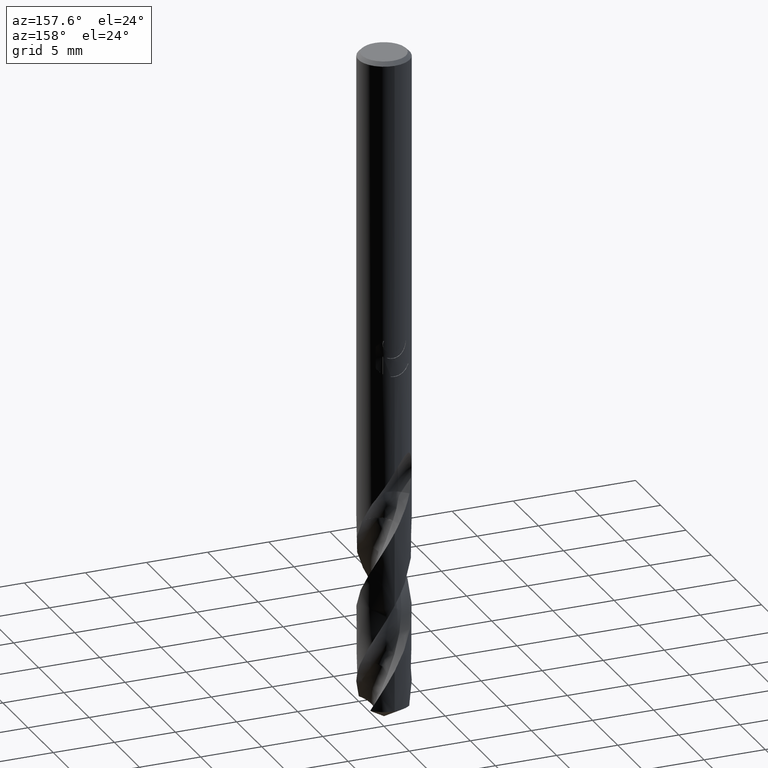
[diagram: clean part render]
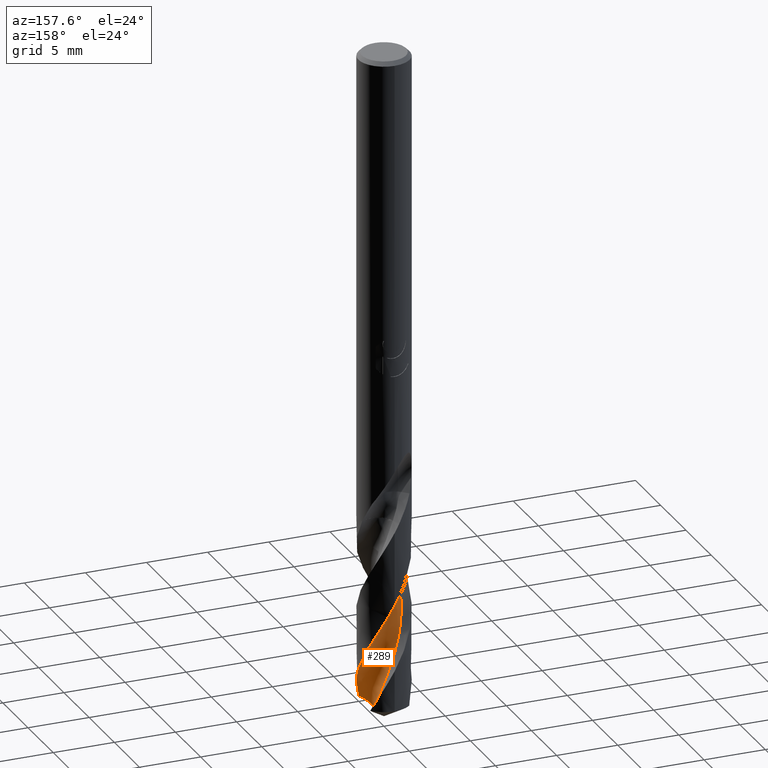
[diagram: same view with one face highlighted and labeled with its STEP entity id]
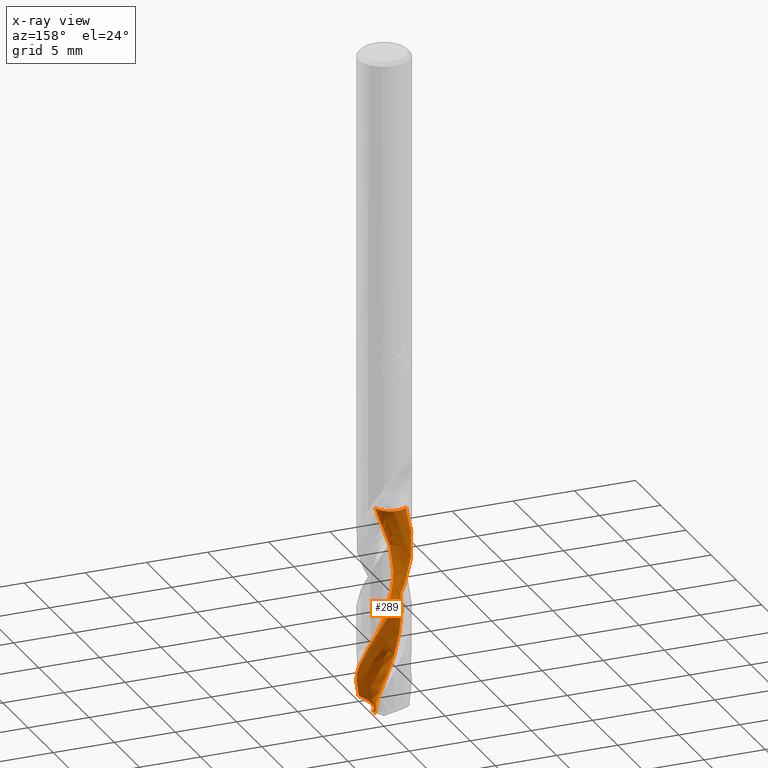
[diagram: x-ray of the same camera — body ghosted, the highlighted face saturated]
A machine part, auxiliary view. The second image highlights one B-rep face of the part: STEP entity #289.
The next image is the same camera in x-ray: the body ghosted, the highlighted face saturated — about 0% of this face is hidden behind the body in this view.
In plain terms, the highlighted face is a freeform B-spline surface patch.
Its self-contained STEP definition (entity closure, byte-faithful):
#275=VERTEX_POINT('',#767);
#289=ADVANCED_FACE('',(#782),#783,.F.);
#353=EDGE_CURVE('',#387,#587,#857,.T.);
#387=VERTEX_POINT('',#896);
#421=EDGE_CURVE('',#275,#687,#932,.T.);
#425=VERTEX_POINT('',#936);
#587=VERTEX_POINT('',#1108);
#595=EDGE_CURVE('',#587,#275,#1116,.T.);
#597=EDGE_CURVE('',#425,#387,#1118,.T.);
#667=EDGE_CURVE('',#687,#425,#1196,.T.);
#687=VERTEX_POINT('',#1217);
#767=CARTESIAN_POINT('',(-2.02320340970795,-0.56234163577506,-38.305));
#782=FACE_OUTER_BOUND('',#1396,.T.);
#783=B_SPLINE_SURFACE_WITH_KNOTS('',3,3,((#1397,#1398,#1399,#1400,#1401,#1402,#1403,#1404,#1405,#1406,#1407,#1408,#1409,#1410,#1411,#1412,#1413,#1414,#1415,#1416,#1417,#1418,#1419,#1420,#1421,#1422,#1423,#1424,#1425,#1426,#1427,#1428,#1429,#1430,#1431,#1432,#1433,#1434,#1435),(#1436,#1437,#1438,#1439,#1440,#1441,#1442,#1443,#1444,#1445,#1446,#1447,#1448,#1449,#1450,#1451,#1452,#1453,#1454,#1455,#1456,#1457,#1458,#1459,#1460,#1461,#1462,#1463,#1464,#1465,#1466,#1467,#1468,#1469,#1470,#1471,#1472,#1473,#1474),(#1475,#1476,#1477,#1478,#1479,#1480,#1481,#1482,#1483,#1484,#1485,#1486,#1487,#1488,#1489,#1490,#1491,#1492,#1493,#1494,#1495,#1496,#1497,#1498,#1499,#1500,#1501,#1502,#1503,#1504,#1505,#1506,#1507,#1508,#1509,#1510,#1511,#1512,#1513),(#1514,#1515,#1516,#1517,#1518,#1519,#1520,#1521,#1522,#1523,#1524,#1525,#1526,#1527,#1528,#1529,#1530,#1531,#1532,#1533,#1534,#1535,#1536,#1537,#1538,#1539,#1540,#1541,#1542,#1543,#1544,#1545,#1546,#1547,#1548,#1549,#1550,#1551,#1552),(#1553,#1554,#1555,#1556,#1557,#1558,#1559,#1560,#1561,#1562,#1563,#1564,#1565,#1566,#1567,#1568,#1569,#1570,#1571,#1572,#1573,#1574,#1575,#1576,#1577,#1578,#1579,#1580,#1581,#1582,#1583,#1584,#1585,#1586,#1587,#1588,#1589,#1590,#1591),(#1592,#1593,#1594,#1595,#1596,#1597,#1598,#1599,#1600,#1601,#1602,#1603,#1604,#1605,#1606,#1607,#1608,#1609,#1610,#1611,#1612,#1613,#1614,#1615,#1616,#1617,#1618,#1619,#1620,#1621,#1622,#1623,#1624,#1625,#1626,#1627,#1628,#1629,#1630),(#1631,#1632,#1633,#1634,#1635,#1636,#1637,#1638,#1639,#1640,#1641,#1642,#1643,#1644,#1645,#1646,#1647,#1648,#1649,#1650,#1651,#1652,#1653,#1654,#1655,#1656,#1657,#1658,#1659,#1660,#1661,#1662,#1663,#1664,#1665,#1666,#1667,#1668,#1669),(#1670,#1671,#1672,#1673,#1674,#1675,#1676,#1677,#1678,#1679,#1680,#1681,#1682,#1683,#1684,#1685,#1686,#1687,#1688,#1689,#1690,#1691,#1692,#1693,#1694,#1695,#1696,#1697,#1698,#1699,#1700,#1701,#1702,#1703,#1704,#1705,#1706,#1707,#1708),(#1709,#1710,#1711,#1712,#1713,#1714,#1715,#1716,#1717,#1718,#1719,#1720,#1721,#1722,#1723,#1724,#1725,#1726,#1727,#1728,#1729,#1730,#1731,#1732,#1733,#1734,#1735,#1736,#1737,#1738,#1739,#1740,#1741,#1742,#1743,#1744,#1745,#1746,#1747),(#1748,#1749,#1750,#1751,#1752,#1753,#1754,#1755,#1756,#1757,#1758,#1759,#1760,#1761,#1762,#1763,#1764,#1765,#1766,#1767,#1768,#1769,#1770,#1771,#1772,#1773,#1774,#1775,#1776,#1777,#1778,#1779,#1780,#1781,#1782,#1783,#1784,#1785,#1786),(#1787,#1788,#1789,#1790,#1791,#1792,#1793,#1794,#1795,#1796,#1797,#1798,#1799,#1800,#1801,#1802,#1803,#1804,#1805,#1806,#1807,#1808,#1809,#1810,#1811,#1812,#1813,#1814,#1815,#1816,#1817,#1818,#1819,#1820,#1821,#1822,#1823,#1824,#1825)),.UNSPECIFIED.,.F.,.F.,.F.,(4,1,1,1,1,1,1,1,4),(4,1,2,2,2,2,2,2,2,2,2,2,2,2,2,2,2,2,2,4),(-3.06643213292735E-017,0.392702069770371,0.785404139540742,1.17810620931111,1.57080827908148,1.96351034885185,2.35621241862223,2.7489144883926,3.14161655816297),(0.0,0.377783773898047,0.755567547796093,1.51113509559219,2.26670264338828,3.02227019118437,4.53340528677656,6.04454038236875,7.55567547796093,9.06681057355312,10.5779456691453,12.0890807647375,13.6002158603297,15.1113509559219,16.6224860515141,18.1336211471062,19.6447562426984,21.1558913382906,22.6670264338828,24.178161529475),.UNSPECIFIED.);
#857=B_SPLINE_CURVE_WITH_KNOTS('',3,(#3271,#3272,#3273,#3274,#3275,#3276,#3277,#3278,#3279,#3280,#3281,#3282,#3283,#3284,#3285,#3286,#3287,#3288,#3289,#3290,#3291,#3292,#3293,#3294,#3295,#3296,#3297,#3298,#3299,#3300,#3301,#3302,#3303,#3304,#3305,#3306,#3307,#3308,#3309,#3310,#3311,#3312,#3313,#3314,#3315,#3316,#3317,#3318,#3319,#3320,#3321,#3322,#3323,#3324,#3325,#3326,#3327,#3328,#3329,#3330,#3331,#3332,#3333,#3334,#3335,#3336,#3337,#3338,#3339,#3340),.UNSPECIFIED.,.F.,.F.,(4,2,2,2,2,2,2,2,2,2,2,2,2,2,2,2,2,2,2,2,2,2,2,2,2,2,2,2,2,2,2,2,2,2,4),(0.0,1.23625972363137,1.28090321122033,1.97511493861058,2.38408910006157,2.79224868021224,3.47174309092541,3.81203643253542,4.15063407136372,4.8304169893768,5.17084619576991,5.5096247447825,6.18969503314159,6.53030298078868,6.86930157082664,7.54976232916387,7.89055697128967,8.22975320694208,8.91059984857461,9.25161203651978,9.59105219882193,10.2723489847607,10.6107846645526,11.0201025744312,11.8424205708732,12.5061808573764,13.179368832994,13.7674621848638,14.8004683721552,14.9936553048343,15.72129262502,16.2673242447076,16.3183011420528,17.1083567396331,17.8964530474587),.UNSPECIFIED.);
#896=CARTESIAN_POINT('',(1.42649737981016,-1.54113763999026,-53.7381927000421));
#932=B_SPLINE_CURVE_WITH_KNOTS('',3,(#3748,#3749,#3750,#3751,#3752,#3753,#3754,#3755,#3756,#3757,#3758,#3759,#3760,#3761,#3762,#3763,#3764,#3765,#3766,#3767),.UNSPECIFIED.,.F.,.F.,(4,2,2,2,2,2,2,2,2,4),(-4.41013167586698,-4.11834428530878,-3.82649306109936,-3.2792943898088,-2.73216853712332,-2.18537760738312,-1.63898850640887,-1.09283122814982,-0.546593721055223,-0.0),.UNSPECIFIED.);
#936=CARTESIAN_POINT('',(1.16681710543968,0.626358709644195,-54.2042764481402));
#1108=CARTESIAN_POINT('',(-2.17781760784545E-014,2.0999434989582,-45.0154529889263));
#1116=B_SPLINE_CURVE_WITH_KNOTS('',3,(#4982,#4983,#4984,#4985,#4986,#4987,#4988,#4989,#4990,#4991,#4992,#4993,#4994,#4995,#4996,#4997,#4998,#4999,#5000,#5001,#5002,#5003,#5004,#5005,#5006,#5007,#5008,#5009,#5010,#5011,#5012,#5013,#5014,#5015,#5016,#5017,#5018,#5019,#5020,#5021,#5022,#5023,#5024,#5025,#5026,#5027,#5028,#5029,#5030,#5031,#5032,#5033,#5034,#5035,#5036,#5037,#5038,#5039,#5040,#5041,#5042,#5043,#5044,#5045,#5046,#5047,#5048,#5049,#5050,#5051),.UNSPECIFIED.,.F.,.F.,(4,2,2,2,2,2,2,2,2,2,2,2,2,2,2,2,2,2,2,2,2,2,2,2,2,2,2,2,2,2,2,2,2,2,4),(0.0,1.23625972363137,1.28090321122033,1.97511493861058,2.38408910006157,2.79224868021224,3.47174309092541,3.81203643253542,4.15063407136372,4.8304169893768,5.17084619576991,5.5096247447825,6.18969503314159,6.53030298078868,6.86930157082664,7.54976232916387,7.89055697128967,8.22975320694208,8.91059984857461,9.25161203651978,9.59105219882193,10.2723489847607,10.6107846645526,11.0201025744312,11.8424205708732,12.5061808573764,13.179368832994,13.7674621848638,14.8004683721552,14.9936553048343,15.72129262502,16.2673242447076,16.3183011420528,17.1083567396331,17.8964530474587),.UNSPECIFIED.);
#1118=B_SPLINE_CURVE_WITH_KNOTS('',3,(#5054,#5055,#5056,#5057,#5058,#5059,#5060,#5061,#5062,#5063,#5064,#5065,#5066,#5067,#5068,#5069,#5070,#5071,#5072,#5073,#5074,#5075),.UNSPECIFIED.,.F.,.F.,(4,2,2,2,2,2,2,2,2,2,4),(0.0,0.721284250802289,1.41332437305515,1.96690449564678,2.45915162259138,3.08818770099338,3.83115656962329,4.71423728901932,5.72105162535886,6.49399210159303,7.26291400825549),.UNSPECIFIED.);
#1196=B_SPLINE_CURVE_WITH_KNOTS('',3,(#6319,#6320,#6321,#6322,#6323,#6324,#6325,#6326,#6327,#6328,#6329,#6330,#6331,#6332,#6333,#6334,#6335,#6336,#6337,#6338,#6339,#6340,#6341,#6342,#6343,#6344,#6345,#6346,#6347,#6348,#6349,#6350,#6351,#6352,#6353,#6354,#6355,#6356,#6357),.UNSPECIFIED.,.F.,.F.,(4,1,2,2,2,2,2,2,2,2,2,2,2,2,2,2,2,2,2,4),(0.0,0.377783773898047,0.755567547796093,1.51113509559219,2.26670264338828,3.02227019118437,4.53340528677656,6.04454038236875,7.55567547796093,9.06681057355312,10.5779456691453,12.0890807647375,13.6002158603297,15.1113509559219,16.6224860515141,18.1336211471062,19.6447562426984,21.1558913382906,22.6670264338828,24.178161529475),.UNSPECIFIED.);
#1217=CARTESIAN_POINT('',(0.189008411700627,-1.30571045022975,-38.305));
#1396=EDGE_LOOP('',(#6876,#6877,#6878,#6879,#6880));
#1397=CARTESIAN_POINT('',(-0.989949493590457,-3.01994949359045,-36.1802));
#1398=CARTESIAN_POINT('',(-1.0688758350359,-3.01694523480776,-36.2781648728217));
#1399=CARTESIAN_POINT('',(-1.22838499605891,-2.99529351123711,-36.4750013554156));
#1400=CARTESIAN_POINT('',(-1.38806801141491,-2.934185332189,-36.6724568761365));
#1401=CARTESIAN_POINT('',(-1.62174904329078,-2.80701861833254,-36.966463749434));
#1402=CARTESIAN_POINT('',(-1.76966327796019,-2.71061782432644,-37.1618350121438));
#1403=CARTESIAN_POINT('',(-2.04876049569606,-2.49823952979735,-37.5529123345001));
#1404=CARTESIAN_POINT('',(-2.18025751011716,-2.38362006370322,-37.7487321672895));
#1405=CARTESIAN_POINT('',(-2.42574998980041,-2.14025174602709,-38.1422546239811));
#1406=CARTESIAN_POINT('',(-2.53824674495528,-2.00755476854275,-38.3387751362583));
#1407=CARTESIAN_POINT('',(-2.83761443773202,-1.57899887794761,-38.9263077218067));
#1408=CARTESIAN_POINT('',(-2.99290221864939,-1.26336389790182,-39.3181677854228));
#1409=CARTESIAN_POINT('',(-3.19219957219411,-0.596211397649259,-40.1029800734792));
#1410=CARTESIAN_POINT('',(-3.23965023174292,-0.247966950388596,-40.4952811945853));
#1411=CARTESIAN_POINT('',(-3.21631626382117,0.44790582149261,-41.2795427966477));
#1412=CARTESIAN_POINT('',(-3.15075718844032,0.793278255841488,-41.6717127005765));
#1413=CARTESIAN_POINT('',(-2.90776658634747,1.44583754428953,-42.4561358641061));
#1414=CARTESIAN_POINT('',(-2.73592380634729,1.75250251836327,-42.8483381112328));
#1415=CARTESIAN_POINT('',(-2.29832860792267,2.29412986721927,-43.6327239433382));
#1416=CARTESIAN_POINT('',(-2.0380309165562,2.53038248947402,-44.0249169170013));
#1417=CARTESIAN_POINT('',(-1.45115828631184,2.90510266830961,-44.8093111484721));
#1418=CARTESIAN_POINT('',(-1.12932633129032,3.04650925696587,-45.2015087042909));
#1419=CARTESIAN_POINT('',(-0.453830201994696,3.21551044094204,-45.9858956986333));
#1420=CARTESIAN_POINT('',(-0.103749740714119,3.24742342458163,-46.3780913518517));
#1421=CARTESIAN_POINT('',(0.590452841522229,3.19323231968715,-47.1624875485096));
#1422=CARTESIAN_POINT('',(0.93254707052502,3.11235709749897,-47.5546819376098));
#1423=CARTESIAN_POINT('',(1.57363693064261,2.84062694288188,-48.3390722069241));
#1424=CARTESIAN_POINT('',(1.87237251767553,2.65534385757207,-48.731270515787));
#1425=CARTESIAN_POINT('',(2.39402389782029,2.19410958045759,-49.5156592805247));
#1426=CARTESIAN_POINT('',(2.61847014858793,1.9235591362831,-49.9078510011194));
#1427=CARTESIAN_POINT('',(2.96671776928263,1.32057733959864,-50.6922453859183));
#1428=CARTESIAN_POINT('',(3.09368929740705,0.992777956200751,-51.0844545788978));
#1429=CARTESIAN_POINT('',(3.23249277706261,0.310481033234163,-51.8688493254887));
#1430=CARTESIAN_POINT('',(3.24877168998819,-0.04062264778827,-52.2609865853464));
#1431=CARTESIAN_POINT('',(3.16406293963796,-0.731802399706809,-53.0453751677296));
#1432=CARTESIAN_POINT('',(3.0681007125806,-1.07024574813472,-53.4378005396866));
#1433=CARTESIAN_POINT('',(2.76648355650612,-1.69816988505033,-54.2221773767236));
#1434=CARTESIAN_POINT('',(2.56866786581134,-1.98755483023997,-54.6137313860527));
#1435=CARTESIAN_POINT('',(2.3300918373385,-2.23920439267621,-55.0057709663642));
#1436=CARTESIAN_POINT('',(-1.11952963473658,-2.89035949161296,-36.1802));
#1437=CARTESIAN_POINT('',(-1.19865110537932,-2.88755034683775,-36.2781704451024));
#1438=CARTESIAN_POINT('',(-1.35647999255895,-2.8641688413914,-36.4751142057292));
#1439=CARTESIAN_POINT('',(-1.51004238376363,-2.79729350035698,-36.6727411403769));
#1440=CARTESIAN_POINT('',(-1.73058708645289,-2.6591364840982,-36.9667146854041));
#1441=CARTESIAN_POINT('',(-1.86947831324708,-2.55656876759864,-37.1619917279043));
#1442=CARTESIAN_POINT('',(-2.13038744294053,-2.33382806025886,-37.5529185708653));
#1443=CARTESIAN_POINT('',(-2.25294601332059,-2.2151306144555,-37.7486979558027));
#1444=CARTESIAN_POINT('',(-2.48088574744182,-1.96523097479249,-38.1424034266297));
#1445=CARTESIAN_POINT('',(-2.58403228202983,-1.82981894942975,-38.3389831163441));
#1446=CARTESIAN_POINT('',(-2.8537237239247,-1.39533611261552,-38.9264106308746));
#1447=CARTESIAN_POINT('',(-2.98933802775998,-1.07906519069538,-39.3182236905807));
#1448=CARTESIAN_POINT('',(-3.14925450733559,-0.41695104969127,-40.1030941845198));
#1449=CARTESIAN_POINT('',(-3.17786564319282,-0.074289486922436,-40.4954100321051));
#1450=CARTESIAN_POINT('',(-3.1186698414808,0.604258692519173,-41.2796536435777));
#1451=CARTESIAN_POINT('',(-3.03702710898043,0.938352192846241,-41.6718199222781));
#1452=CARTESIAN_POINT('',(-2.76553801886752,1.56310584473629,-42.4562474429037));
#1453=CARTESIAN_POINT('',(-2.58201959265561,1.85396435912514,-42.8484506011854));
#1454=CARTESIAN_POINT('',(-2.12622734017524,2.36017534625894,-43.6328356251199));
#1455=CARTESIAN_POINT('',(-1.8598777189261,2.57773553213537,-44.0250282135351));
#1456=CARTESIAN_POINT('',(-1.26699332110694,2.91310145979519,-44.8094227963846));
#1457=CARTESIAN_POINT('',(-0.945355357370187,3.03486054556882,-45.2016206084045));
#1458=CARTESIAN_POINT('',(-0.276652863050472,3.16462777872578,-45.98600694684));
#1459=CARTESIAN_POINT('',(0.0670054062327995,3.17797073837205,-46.3782025761151));
#1460=CARTESIAN_POINT('',(0.74231038043726,3.08873291044222,-47.16259942868));
#1461=CARTESIAN_POINT('',(1.07241954697574,2.99228811413435,-47.5547936464083));
#1462=CARTESIAN_POINT('',(1.68446823222968,2.6933274684109,-48.3391836580448));
#1463=CARTESIAN_POINT('',(1.96689676873869,2.49708394798412,-48.7313822335902));
#1464=CARTESIAN_POINT('',(2.45235727235958,2.01924365374159,-49.5157708343511));
#1465=CARTESIAN_POINT('',(2.65785822918718,1.74347705482715,-49.907962323127));
#1466=CARTESIAN_POINT('',(2.96651802556714,1.13623857742929,-50.6923562159957));
#1467=CARTESIAN_POINT('',(3.07387334577383,0.809506900916819,-51.0845660972644));
#1468=CARTESIAN_POINT('',(3.17378658740479,0.135740149919992,-51.8689647792967));
#1469=CARTESIAN_POINT('',(3.17179662376283,-0.208119129289933,-52.2610985742947));
#1470=CARTESIAN_POINT('',(3.05294684070644,-0.878884994996884,-53.0454738979881));
#1471=CARTESIAN_POINT('',(2.94193977683836,-1.20466772125742,-53.437913658134));
#1472=CARTESIAN_POINT('',(2.61426453399403,-1.80216532297949,-54.2223158881388));
#1473=CARTESIAN_POINT('',(2.40638453109246,-2.07487286431293,-54.6138256727836));
#1474=CARTESIAN_POINT('',(2.16046956888506,-2.30857914425172,-55.0058781135557));
#1475=CARTESIAN_POINT('',(-1.32710198260631,-2.5797046396058,-36.1802));
#1476=CARTESIAN_POINT('',(-1.40669121965665,-2.57720804675472,-36.2781796094613));
#1477=CARTESIAN_POINT('',(-1.56047238777092,-2.55103590197691,-36.4752998084156));
#1478=CARTESIAN_POINT('',(-1.6995028085969,-2.47506247913487,-36.6732086639284));
#1479=CARTESIAN_POINT('',(-1.88940990216381,-2.32015336590528,-36.9671273945315));
#1480=CARTESIAN_POINT('',(-2.00780649789105,-2.20884260544158,-37.162249475981));
#1481=CARTESIAN_POINT('',(-2.22822633629662,-1.9726142347265,-37.5529288267793));
#1482=CARTESIAN_POINT('',(-2.331290114469,-1.84931705733976,-37.7486416872619));
#1483=CARTESIAN_POINT('',(-2.52153448196197,-1.59333758721815,-38.142648160883));
#1484=CARTESIAN_POINT('',(-2.60490483935291,-1.45621481076889,-38.3393251735365));
#1485=CARTESIAN_POINT('',(-2.81289933129177,-1.02168183185807,-38.9265798899921));
#1486=CARTESIAN_POINT('',(-2.90892208249152,-0.711962749994896,-39.3183156311492));
#1487=CARTESIAN_POINT('',(-2.99209696485799,-0.0755835711750724,-40.1032818660751));
#1488=CARTESIAN_POINT('',(-2.98525709780705,0.24842277278057,-40.4956219447407));
#1489=CARTESIAN_POINT('',(-2.86124211411098,0.878068070739641,-41.2798359350012));
#1490=CARTESIAN_POINT('',(-2.75192406803779,1.18321254730491,-41.6719962537781));
#1491=CARTESIAN_POINT('',(-2.434507325935,1.74103380514282,-42.4564309680574));
#1492=CARTESIAN_POINT('',(-2.23392820217099,1.99564305338697,-42.8486355960811));
#1493=CARTESIAN_POINT('',(-1.75583331044264,2.42379991963706,-43.6330193208356));
#1494=CARTESIAN_POINT('',(-1.48481571026006,2.60157645394674,-44.0252112423421));
#1495=CARTESIAN_POINT('',(-0.895560103758211,2.85585979260487,-44.8096064396912));
#1496=CARTESIAN_POINT('',(-0.582123152645108,2.93840928586451,-45.2018046331338));
#1497=CARTESIAN_POINT('',(0.0573929726820282,2.99242672353221,-45.9861899361087));
#1498=CARTESIAN_POINT('',(0.380824925050672,2.97119133057515,-46.3783855143069));
#1499=CARTESIAN_POINT('',(1.0044057981316,2.81938973112094,-47.1627834257395));
#1500=CARTESIAN_POINT('',(1.3043584201266,2.69657837748643,-47.5549773673639));
#1501=CARTESIAN_POINT('',(1.84750837915814,2.35471685563734,-48.3393669635956));
#1502=CARTESIAN_POINT('',(2.09297110370492,2.14304182381302,-48.7315659690263));
#1503=CARTESIAN_POINT('',(2.49946147211711,1.64638831129922,-49.5159543091504));
#1504=CARTESIAN_POINT('',(2.66500554270506,1.36772547720827,-49.9081453770704));
#1505=CARTESIAN_POINT('',(2.89281361654152,0.767718103815525,-50.6925385309777));
#1506=CARTESIAN_POINT('',(2.9613693859922,0.450922063036689,-51.0847495138472));
#1507=CARTESIAN_POINT('',(2.98691065477036,-0.190322664184631,-51.8691546591523));
#1508=CARTESIAN_POINT('',(2.95127149570204,-0.512431311288654,-52.2612827743205));
#1509=CARTESIAN_POINT('',(2.772271880998,-1.12880130253544,-53.0456362635027));
#1510=CARTESIAN_POINT('',(2.63621617812395,-1.4232853336781,-53.4380996881204));
#1511=CARTESIAN_POINT('',(2.26853526141814,-1.94958029369545,-54.2225437085828));
#1512=CARTESIAN_POINT('',(2.04716291318343,-2.18493782552923,-54.613980746506));
#1513=CARTESIAN_POINT('',(1.79370857545793,-2.37984666365113,-55.0060543363255));
#1514=CARTESIAN_POINT('',(-1.43645064624031,-2.03000025877675,-36.1802000000001));
#1515=CARTESIAN_POINT('',(-1.51686759661197,-2.02766831670815,-36.2781853304544));
#1516=CARTESIAN_POINT('',(-1.66343689847793,-1.99995217936248,-36.4754156731114));
#1517=CARTESIAN_POINT('',(-1.77710455942727,-1.91971120815884,-36.6735005207299));
#1518=CARTESIAN_POINT('',(-1.91493328275088,-1.75917250032017,-36.9673850333388));
#1519=CARTESIAN_POINT('',(-1.99990655729435,-1.64750967706784,-37.1624103776287));
#1520=CARTESIAN_POINT('',(-2.15646823684779,-1.41583146478011,-37.5529352297213));
#1521=CARTESIAN_POINT('',(-2.22987305729084,-1.29735044087636,-37.7486065612743));
#1522=CARTESIAN_POINT('',(-2.36438409145541,-1.05458379618901,-38.1428009387712));
#1523=CARTESIAN_POINT('',(-2.4193639786289,-0.92644246335518,-38.3395387081861));
#1524=CARTESIAN_POINT('',(-2.54182178997333,-0.527257567432499,-38.9266855489703));
#1525=CARTESIAN_POINT('',(-2.58673443786299,-0.249346594296638,-39.3183730269385));
#1526=CARTESIAN_POINT('',(-2.57832388974871,0.30731191390955,-40.1033990276295));
#1527=CARTESIAN_POINT('',(-2.53306040474662,0.585112617507431,-40.4957542229671));
#1528=CARTESIAN_POINT('',(-2.34728328085839,1.10977208996849,-41.2799497432159));
#1529=CARTESIAN_POINT('',(-2.21622741802778,1.35890804803726,-41.6721063363855));
#1530=CARTESIAN_POINT('',(-1.87358082345834,1.79760056378711,-42.4565455301279));
#1531=CARTESIAN_POINT('',(-1.67016574046826,1.99217701542076,-42.848751088385));
#1532=CARTESIAN_POINT('',(-1.20596817762165,2.2993531986253,-43.6331339879096));
#1533=CARTESIAN_POINT('',(-0.951319020203271,2.41931260471339,-44.025325513741));
#1534=CARTESIAN_POINT('',(-0.413638437952966,2.56330403783255,-44.8097210676028));
#1535=CARTESIAN_POINT('',(-0.13407595798675,2.59621950413871,-45.2019195315693));
#1536=CARTESIAN_POINT('',(0.421505368716749,2.56200735897685,-45.9863041504107));
#1537=CARTESIAN_POINT('',(0.697055168177231,2.50445969380419,-46.3784996999362));
#1538=CARTESIAN_POINT('',(1.21303494834048,2.2956413272432,-47.1628983036804));
#1539=CARTESIAN_POINT('',(1.4560568011692,2.1535991771027,-47.5550920508165));
#1540=CARTESIAN_POINT('',(1.87909035371532,1.79183150512831,-48.3394814006818));
#1541=CARTESIAN_POINT('',(2.06446242920437,1.57998979512807,-48.7316806723798));
#1542=CARTESIAN_POINT('',(2.35070570046668,1.10259554067878,-49.5160688410299));
#1543=CARTESIAN_POINT('',(2.45920961305882,0.842856118458035,-49.9082596621661));
#1544=CARTESIAN_POINT('',(2.57911369243925,0.29928380703995,-50.6926523316621));
#1545=CARTESIAN_POINT('',(2.59959946793506,0.0185309219957063,-51.0848640138816));
#1546=CARTESIAN_POINT('',(2.54073559233553,-0.534946967237384,-51.8692731937382));
#1547=CARTESIAN_POINT('',(2.47094692678057,-0.807594234361428,-52.2613977383193));
#1548=CARTESIAN_POINT('',(2.23980987381849,-1.31404596748435,-53.0457376470358));
#1549=CARTESIAN_POINT('',(2.08700555576326,-1.55077284763911,-53.4382158185341));
#1550=CARTESIAN_POINT('',(1.70475359445944,-1.9554203587864,-54.2226859290836));
#1551=CARTESIAN_POINT('',(1.48612271918646,-2.13126791539652,-54.6140775414515));
#1552=CARTESIAN_POINT('',(1.24449111860618,-2.26807811025201,-55.0061643454265));
#1553=CARTESIAN_POINT('',(-1.32711123667512,-1.48029403718319,-36.1801999999999));
#1554=CARTESIAN_POINT('',(-1.40835590373736,-1.47779745867503,-36.2781821533502));
#1555=CARTESIAN_POINT('',(-1.54767141706506,-1.45141476223054,-36.4753513321287));
#1556=CARTESIAN_POINT('',(-1.63627430801573,-1.3769368851368,-36.6733384487975));
#1557=CARTESIAN_POINT('',(-1.72383447069568,-1.2311267918908,-36.9672419635259));
#1558=CARTESIAN_POINT('',(-1.77779370472401,-1.1319294560953,-37.1623210270159));
#1559=CARTESIAN_POINT('',(-1.87709937161871,-0.928892746154717,-37.5529316739704));
#1560=CARTESIAN_POINT('',(-1.92494599704553,-0.826211347018453,-37.7486260677384));
#1561=CARTESIAN_POINT('',(-2.01302266216514,-0.616980043908919,-38.1427160987127));
#1562=CARTESIAN_POINT('',(-2.04521038535501,-0.508000984405366,-38.3394201290577));
#1563=CARTESIAN_POINT('',(-2.10216976705372,-0.174207267537264,-38.926626876448));
#1564=CARTESIAN_POINT('',(-2.11203542929007,0.0547577201338348,-39.3183411534635));
#1565=CARTESIAN_POINT('',(-2.04951909154451,0.502715603977621,-40.103333967194));
#1566=CARTESIAN_POINT('',(-1.98643910644501,0.72312375171719,-40.4956807681393));
#1567=CARTESIAN_POINT('',(-1.78377788824575,1.12715354765331,-41.2798865431181));
#1568=CARTESIAN_POINT('',(-1.6540726066647,1.31622567709211,-41.6720452064448));
#1569=CARTESIAN_POINT('',(-1.33370560325593,1.6352026086738,-42.4564819120246));
#1570=CARTESIAN_POINT('',(-1.15064415589572,1.77323077165912,-42.8486869559919));
#1571=CARTESIAN_POINT('',(-0.745583657130156,1.97395382139389,-43.633070309877));
#1572=CARTESIAN_POINT('',(-0.52818276435789,2.04676119942283,-44.025262061276));
#1573=CARTESIAN_POINT('',(-0.0803584101669486,2.10859337106124,-44.8096574093762));
#1574=CARTESIAN_POINT('',(0.148913919065208,2.10861631279848,-45.2018557413125));
#1575=CARTESIAN_POINT('',(0.59318546937174,2.02501143780742,-45.986240711459));
#1576=CARTESIAN_POINT('',(0.810601775790106,1.95223948562276,-46.3784362827721));
#1577=CARTESIAN_POINT('',(1.20535169827108,1.73192198530575,-47.1628345189353));
#1578=CARTESIAN_POINT('',(1.38841708403776,1.59389953582968,-47.5550283474267));
#1579=CARTESIAN_POINT('',(1.69285987014852,1.25970787719503,-48.33941787052));
#1580=CARTESIAN_POINT('',(1.82265170536668,1.07070803334752,-48.7316169703071));
#1581=CARTESIAN_POINT('',(2.00517152340092,0.657123880182818,-49.5160052458646));
#1582=CARTESIAN_POINT('',(2.06821899376718,0.436695868806164,-49.9081962034162));
#1583=CARTESIAN_POINT('',(2.11002980273873,-0.0134439520485791,-50.6925891314832));
#1584=CARTESIAN_POINT('',(2.09989797102252,-0.242501628691714,-51.0848004273142));
#1585=CARTESIAN_POINT('',(1.9966411379887,-0.682592947377444,-51.8692073732216));
#1586=CARTESIAN_POINT('',(1.91423066371332,-0.896475374109258,-52.2613338895715));
#1587=CARTESIAN_POINT('',(1.67698914752111,-1.28142370422525,-53.0456813552417));
#1588=CARTESIAN_POINT('',(1.53081400295473,-1.45838055558268,-53.438151329885));
#1589=CARTESIAN_POINT('',(1.18165293180842,-1.74506450594655,-54.2226069521872));
#1590=CARTESIAN_POINT('',(0.988328512615621,-1.86698115085376,-54.6140238017678));
#1591=CARTESIAN_POINT('',(0.779853218758517,-1.95463967158202,-55.0061032559733));
#1592=CARTESIAN_POINT('',(-1.01572993790979,-1.01427502113199,-36.1801999999999));
#1593=CARTESIAN_POINT('',(-1.09767631031427,-1.01130958313036,-36.278170562199));
#1594=CARTESIAN_POINT('',(-1.23080045364713,-0.988934754802658,-36.4751165807871));
#1595=CARTESIAN_POINT('',(-1.2984525055807,-0.929373221469298,-36.6727471224455));
#1596=CARTESIAN_POINT('',(-1.34520696486722,-0.816407621276138,-36.9667199665807));
#1597=CARTESIAN_POINT('',(-1.37528311501124,-0.740595536210204,-37.1619950262878));
#1598=CARTESIAN_POINT('',(-1.43265175824734,-0.585931198605827,-37.5529187017469));
#1599=CARTESIAN_POINT('',(-1.46293201208533,-0.507627510923754,-37.7486972352419));
#1600=CARTESIAN_POINT('',(-1.5209425899206,-0.347148534050727,-38.1424065587171));
#1601=CARTESIAN_POINT('',(-1.5394064039758,-0.264595253247416,-38.3389874909584));
#1602=CARTESIAN_POINT('',(-1.56087731124585,-0.0162804466012164,-38.9264128010478));
#1603=CARTESIAN_POINT('',(-1.55709476301009,0.154052376659331,-39.3182248642005));
#1604=CARTESIAN_POINT('',(-1.48618951680027,0.480878607668283,-40.1030965888251));
#1605=CARTESIAN_POINT('',(-1.42861259332437,0.64144491678403,-40.4954127493197));
#1606=CARTESIAN_POINT('',(-1.25651581005816,0.927566233560795,-41.2796559704316));
#1607=CARTESIAN_POINT('',(-1.15104388839642,1.06166353702162,-41.6718221729334));
#1608=CARTESIAN_POINT('',(-0.897074013581845,1.27856392684935,-42.4562497968197));
#1609=CARTESIAN_POINT('',(-0.75445708813702,1.37213740325054,-42.8484529614864));
#1610=CARTESIAN_POINT('',(-0.444770171938046,1.49714163799344,-43.6328379824248));
#1611=CARTESIAN_POINT('',(-0.279826568932009,1.54064067047959,-44.0250305501206));
#1612=CARTESIAN_POINT('',(0.053540353644597,1.56095440314301,-44.8094251515788));
#1613=CARTESIAN_POINT('',(0.223763197635379,1.54983398940839,-45.2016229590864));
#1614=CARTESIAN_POINT('',(0.546296133189063,1.4631929525647,-45.9860092923101));
#1615=CARTESIAN_POINT('',(0.704178044697459,1.39860247895173,-46.3782049216216));
#1616=CARTESIAN_POINT('',(0.982525772473489,1.21405416500953,-47.1626017783244));
#1617=CARTESIAN_POINT('',(1.11173695981067,1.10268992859357,-47.5547959947657));
#1618=CARTESIAN_POINT('',(1.31716925469239,0.839358189225895,-48.3391860060014));
#1619=CARTESIAN_POINT('',(1.40435297627022,0.692731233124379,-48.7313845834592));
#1620=CARTESIAN_POINT('',(1.51546417695661,0.377793372342517,-49.5157731831476));
#1621=CARTESIAN_POINT('',(1.55155935404414,0.211079866432197,-49.9079646695941));
#1622=CARTESIAN_POINT('',(1.55697679260105,-0.12285448495021,-50.6923585446334));
#1623=CARTESIAN_POINT('',(1.53834105226293,-0.292435145504834,-51.0845684492805));
#1624=CARTESIAN_POINT('',(1.43746199340841,-0.610782511843876,-51.8689672038233));
#1625=CARTESIAN_POINT('',(1.36587898421338,-0.765543178091295,-52.2611009418855));
#1626=CARTESIAN_POINT('',(1.16949534275837,-1.03590103257599,-53.0454759649068));
#1627=CARTESIAN_POINT('',(1.05231790859308,-1.16017455912202,-53.437916033414));
#1628=CARTESIAN_POINT('',(0.778871808888679,-1.35053798658361,-54.2223188083108));
#1629=CARTESIAN_POINT('',(0.629566091696598,-1.43231340167961,-54.6138276689455));
#1630=CARTESIAN_POINT('',(0.470532846832647,-1.48725022542972,-55.0058803684276));
#1631=CARTESIAN_POINT('',(-0.549712442125009,-0.702891447120012,-36.1802000000001));
#1632=CARTESIAN_POINT('',(-0.632127678712265,-0.699224306652075,-36.2781523214823));
#1633=CARTESIAN_POINT('',(-0.761065464637704,-0.68292160408212,-36.4747471584688));
#1634=CARTESIAN_POINT('',(-0.815070231703862,-0.645158750780323,-36.671816567132));
#1635=CARTESIAN_POINT('',(-0.836694236809554,-0.578153172341689,-36.9658985129416));
#1636=CARTESIAN_POINT('',(-0.853654296477293,-0.53308585512412,-37.1614820067298));
#1637=CARTESIAN_POINT('',(-0.890789534112149,-0.439160392252203,-37.5528982880981));
#1638=CARTESIAN_POINT('',(-0.914169598652164,-0.390101163725567,-37.7488092300862));
#1639=CARTESIAN_POINT('',(-0.963059731796736,-0.286169283598571,-38.1419194430793));
#1640=CARTESIAN_POINT('',(-0.978957263404297,-0.233282139437826,-38.3383066613805));
#1641=CARTESIAN_POINT('',(-1.00035252782332,-0.0775203990700143,-38.9260759117486));
#1642=CARTESIAN_POINT('',(-1.00639839653003,0.033420436411751,-39.3180418628451));
#1643=CARTESIAN_POINT('',(-0.974098272519821,0.245125460090821,-40.102723032325));
#1644=CARTESIAN_POINT('',(-0.944506171798504,0.352511160315613,-40.4949909720531));
#1645=CARTESIAN_POINT('',(-0.845769123130858,0.541395964837307,-41.2792931267882));
#1646=CARTESIAN_POINT('',(-0.78372398107061,0.633976987860886,-41.6714711924289));
#1647=CARTESIAN_POINT('',(-0.630160249413222,0.781980340666153,-42.4558845212401));
#1648=CARTESIAN_POINT('',(-0.541921334559026,0.849960660357357,-42.8480847347445));
#1649=CARTESIAN_POINT('',(-0.349324534565179,0.94150806804192,-43.6324723700352));
#1650=CARTESIAN_POINT('',(-0.244060981381775,0.978004435825144,-44.0246662344308));
#1651=CARTESIAN_POINT('',(-0.032327325667057,1.00376145710562,-44.8090596457355));
#1652=CARTESIAN_POINT('',(0.0790765756554198,1.00494336355649,-45.2012566455891));
#1653=CARTESIAN_POINT('',(0.287975950519739,0.962084951295266,-45.9856451037878));
#1654=CARTESIAN_POINT('',(0.393986265637667,0.927836161229351,-46.3778408127293));
#1655=CARTESIAN_POINT('',(0.578480908802247,0.820879726114649,-47.1622355419429));
#1656=CARTESIAN_POINT('',(0.66813909816769,0.754753689056324,-47.5544303304142));
#1657=CARTESIAN_POINT('',(0.809214860984727,0.594777831664684,-48.3388211434545));
#1658=CARTESIAN_POINT('',(0.873249384789094,0.503603800543299,-48.7310188754154));
#1659=CARTESIAN_POINT('',(0.956138288753389,0.307130193467412,-49.5154079985988));
#1660=CARTESIAN_POINT('',(0.987888615974992,0.200356623595384,-49.9076002754034));
#1661=CARTESIAN_POINT('',(1.00415324032077,-0.0122907847526091,-50.691995711139));
#1662=CARTESIAN_POINT('',(1.00042194356126,-0.123667589445259,-51.0842033849669));
#1663=CARTESIAN_POINT('',(0.948329395933054,-0.33044831222842,-51.8685892616005));
#1664=CARTESIAN_POINT('',(0.909374721920915,-0.434731183574819,-52.2607343247778));
#1665=CARTESIAN_POINT('',(0.794590944302576,-0.614857117244579,-53.0451527804905));
#1666=CARTESIAN_POINT('',(0.72436506719895,-0.701554697967143,-53.4375457544652));
#1667=CARTESIAN_POINT('',(0.557730914176218,-0.831904791149264,-54.2218653623562));
#1668=CARTESIAN_POINT('',(0.464454600511597,-0.893439889043479,-54.6135190040983));
#1669=CARTESIAN_POINT('',(0.363621932866816,-0.937066646985133,-55.0055296159006));
#1670=CARTESIAN_POINT('',(-6.75436752042846E-006,-0.593549353716822,-36.1802));
#1671=CARTESIAN_POINT('',(-0.0825866326765246,-0.589054497404924,-36.2781302080728));
#1672=CARTESIAN_POINT('',(-0.209980418048815,-0.57996373774741,-36.4742993071901));
#1673=CARTESIAN_POINT('',(-0.259719161466596,-0.567563200354539,-36.6706884538045));
#1674=CARTESIAN_POINT('',(-0.275713902110512,-0.55263606895618,-36.96490266294));
#1675=CARTESIAN_POINT('',(-0.292321703750219,-0.540992355381803,-37.16086007275));
#1676=CARTESIAN_POINT('',(-0.33400754744395,-0.510925187428783,-37.5528735402064));
#1677=CARTESIAN_POINT('',(-0.362204115071827,-0.49152489238844,-37.7489450016399));
#1678=CARTESIAN_POINT('',(-0.424307971171624,-0.443325972906338,-38.1413289120285));
#1679=CARTESIAN_POINT('',(-0.44918754647467,-0.418828852115543,-38.3374812887242));
#1680=CARTESIAN_POINT('',(-0.505931515937716,-0.348603757654993,-38.9256675042354));
#1681=CARTESIAN_POINT('',(-0.543786112992086,-0.288772709930183,-39.3178200091257));
#1682=CARTESIAN_POINT('',(-0.591207785674956,-0.168652015402929,-40.102270170126));
#1683=CARTESIAN_POINT('',(-0.607821761568942,-0.0996893112338286,-40.494479659581));
#1684=CARTESIAN_POINT('',(-0.614071228168588,0.0274345469814899,-41.2788532421615));
#1685=CARTESIAN_POINT('',(-0.608034855171684,0.0982784070892227,-41.671045699015));
#1686=CARTESIAN_POINT('',(-0.573600117885364,0.221053336008563,-42.455441696335));
#1687=CARTESIAN_POINT('',(-0.545394016077656,0.286198408973091,-42.8476383368025));
#1688=CARTESIAN_POINT('',(-0.473777703350017,0.391644560230134,-43.6320291337055));
#1689=CARTESIAN_POINT('',(-0.426331069646973,0.444510047483761,-44.0242245743151));
#1690=CARTESIAN_POINT('',(-0.324888676280386,0.521843383431211,-44.8086165421208));
#1691=CARTESIAN_POINT('',(-0.263118392455211,0.556900335251987,-45.2008125707982));
#1692=CARTESIAN_POINT('',(-0.142447578642819,0.597977735141074,-45.9852035898955));
#1693=CARTESIAN_POINT('',(-0.0727489620057662,0.611611509794309,-46.3773994095709));
#1694=CARTESIAN_POINT('',(0.0547301956046867,0.612256815646771,-47.1617915464437));
#1695=CARTESIAN_POINT('',(0.125158267584758,0.603061756661811,-47.5539870170621));
#1696=CARTESIAN_POINT('',(0.246329301765843,0.563202500870552,-48.3383788379552));
#1697=CARTESIAN_POINT('',(0.310197857293166,0.532119108772767,-48.730575524525));
#1698=CARTESIAN_POINT('',(0.412347429725667,0.455892330108816,-49.514965287309));
#1699=CARTESIAN_POINT('',(0.463021837530146,0.406158681238153,-49.907158519463));
#1700=CARTESIAN_POINT('',(0.535722775985964,0.301414574687928,-50.6915558478731));
#1701=CARTESIAN_POINT('',(0.568035196531637,0.238107316983793,-51.0837608067277));
#1702=CARTESIAN_POINT('',(0.60371045481294,0.115730675698895,-51.8681310919055));
#1703=CARTESIAN_POINT('',(0.614217543675639,0.0455967231221284,-52.2602898848031));
#1704=CARTESIAN_POINT('',(0.609352618582921,-0.0823930380774909,-53.0447609730507));
#1705=CARTESIAN_POINT('',(0.596884071551668,-0.1523427382815,-53.4370968614488));
#1706=CARTESIAN_POINT('',(0.55189745442781,-0.268123307482486,-54.2213156524474));
#1707=CARTESIAN_POINT('',(0.518131146794424,-0.332400447731652,-54.6131448017463));
#1708=CARTESIAN_POINT('',(0.475396938863747,-0.387850656898753,-55.0051043980896));
#1709=CARTESIAN_POINT('',(0.54970463966081,-0.702888854345144,-36.1802000000001));
#1710=CARTESIAN_POINT('',(0.467289398250327,-0.697566273800326,-36.278107588474));
#1711=CARTESIAN_POINT('',(0.338562278964653,-0.695729387664851,-36.4738412045244));
#1712=CARTESIAN_POINT('',(0.283059113285457,-0.708393868294135,-36.669534516676));
#1713=CARTESIAN_POINT('',(0.252335979609242,-0.743735674234593,-36.963884018212));
#1714=CARTESIAN_POINT('',(0.223263285707774,-0.763106334483943,-37.1602239032751));
#1715=CARTESIAN_POINT('',(0.152936135922502,-0.790295799408335,-37.5528482248065));
#1716=CARTESIAN_POINT('',(0.10893985830248,-0.796453988218316,-37.7490838811397));
#1717=CARTESIAN_POINT('',(0.0133001401462076,-0.79468980304348,-38.1407248632664));
#1718=CARTESIAN_POINT('',(-0.0307422154662989,-0.792984875968051,-38.3366370221511));
#1719=CARTESIAN_POINT('',(-0.152877339511834,-0.78825910559511,-38.9252497490967));
#1720=CARTESIAN_POINT('',(-0.23967828814496,-0.763475512013213,-39.317593077255));
#1721=CARTESIAN_POINT('',(-0.395801568445958,-0.697461155418948,-40.1018069413564));
#1722=CARTESIAN_POINT('',(-0.469808598133118,-0.646315129408265,-40.4939566354669));
#1723=CARTESIAN_POINT('',(-0.596688741395568,-0.53607576060194,-41.2784032956054));
#1724=CARTESIAN_POINT('',(-0.650716726835237,-0.463881412403679,-41.6706104606555));
#1725=CARTESIAN_POINT('',(-0.735998660664091,-0.31882686519255,-42.4549887399566));
#1726=CARTESIAN_POINT('',(-0.764341371142378,-0.233328066184711,-42.847181715708));
#1727=CARTESIAN_POINT('',(-0.799179220431905,-0.0687444965758132,-43.6315757561711));
#1728=CARTESIAN_POINT('',(-0.798885082291308,0.0213695061201597,-44.023772793385));
#1729=CARTESIAN_POINT('',(-0.779602813424589,0.188559730457158,-44.8081633064534));
#1730=CARTESIAN_POINT('',(-0.750725417433233,0.273907220966767,-45.200358335207));
#1731=CARTESIAN_POINT('',(-0.67944794028596,0.426295300064621,-45.9847519650505));
#1732=CARTESIAN_POINT('',(-0.624973839415811,0.498063050465203,-46.3769479096856));
#1733=CARTESIAN_POINT('',(-0.50899409218011,0.619939260788269,-47.1613373802735));
#1734=CARTESIAN_POINT('',(-0.434546382706311,0.670701198746261,-47.5535335614148));
#1735=CARTESIAN_POINT('',(-0.285799278049553,0.749433792596463,-48.3379264023116));
#1736=CARTESIAN_POINT('',(-0.199088737903547,0.773931160757201,-48.7301220306298));
#1737=CARTESIAN_POINT('',(-0.0331286734041171,0.801428846616615,-49.5145124364324));
#1738=CARTESIAN_POINT('',(0.0568574171854144,0.797152097341037,-49.9067066681651));
#1739=CARTESIAN_POINT('',(0.222991552735153,0.77050209248915,-50.6911058990829));
#1740=CARTESIAN_POINT('',(0.306999592291877,0.737812792673505,-51.0833081004644));
#1741=CARTESIAN_POINT('',(0.456062337676398,0.659829654614575,-51.8676624314818));
#1742=CARTESIAN_POINT('',(0.525334756529477,0.602317723712668,-52.2598352537912));
#1743=CARTESIAN_POINT('',(0.641974288689281,0.480432712257345,-53.0443602143514));
#1744=CARTESIAN_POINT('',(0.689276315616979,0.403853830046716,-53.4366376783245));
#1745=CARTESIAN_POINT('',(0.762254336665904,0.254982165152697,-54.2207533739131));
#1746=CARTESIAN_POINT('',(0.782419471108771,0.165398582712082,-54.6127620669278));
#1747=CARTESIAN_POINT('',(0.788837408817394,0.0767918139698101,-55.0046694467422));
#1748=CARTESIAN_POINT('',(0.860359491612668,-0.910470365263569,-36.1801999999999));
#1749=CARTESIAN_POINT('',(0.778256814044488,-0.90468001712901,-36.2780944683138));
#1750=CARTESIAN_POINT('',(0.646857928039394,-0.906970372095498,-36.4735754883037));
#1751=CARTESIAN_POINT('',(0.581410034369206,-0.933601305789183,-36.6688651919011));
#1752=CARTESIAN_POINT('',(0.528791476540312,-0.996144550018829,-36.9632931669288));
#1753=CARTESIAN_POINT('',(0.484129650742026,-1.03143574608805,-37.1598549020212));
#1754=CARTESIAN_POINT('',(0.381555893502694,-1.08658065561682,-37.5528335410055));
#1755=CARTESIAN_POINT('',(0.321308586984976,-1.10444865210689,-37.7491644361841));
#1756=CARTESIAN_POINT('',(0.193168711281241,-1.12272651471379,-38.1403744932941));
#1757=CARTESIAN_POINT('',(0.131509794846068,-1.13016983821494,-38.3361473175115));
#1758=CARTESIAN_POINT('',(-0.0476078320203153,-1.14910022642924,-38.9250074353007));
#1759=CARTESIAN_POINT('',(-0.173494588104223,-1.133414002499,-39.3174614502547));
#1760=CARTESIAN_POINT('',(-0.410367395192751,-1.07298997995557,-40.1015382503247));
#1761=CARTESIAN_POINT('',(-0.52426639411472,-1.01817451833992,-40.493653272277));
#1762=CARTESIAN_POINT('',(-0.729746671189967,-0.887558349542535,-41.2781423007618));
#1763=CARTESIAN_POINT('',(-0.820421830728174,-0.799208610546463,-41.6703580165245));
#1764=CARTESIAN_POINT('',(-0.973749446349925,-0.609890531843372,-42.4547259991472));
#1765=CARTESIAN_POINT('',(-1.03172610032352,-0.497429741242824,-42.8469168550616));
#1766=CARTESIAN_POINT('',(-1.11703845721914,-0.269266652760606,-43.6313127848318));
#1767=CARTESIAN_POINT('',(-1.13628116568512,-0.144182895772331,-44.0235107668666));
#1768=CARTESIAN_POINT('',(-1.14467431024137,0.0993080781167121,-44.807900390748));
#1769=CARTESIAN_POINT('',(-1.12322442807398,0.224019558325301,-45.2000948477599));
#1770=CARTESIAN_POINT('',(-1.05396904424674,0.457561599506425,-45.9844900208136));
#1771=CARTESIAN_POINT('',(-0.994040043218068,0.569016294396829,-46.376686016265));
#1772=CARTESIAN_POINT('',(-0.854213880270929,0.768488473993679,-47.161073954756));
#1773=CARTESIAN_POINT('',(-0.76199432244677,0.855150515381195,-47.5532705311971));
#1774=CARTESIAN_POINT('',(-0.566008738170381,0.999884799208856,-48.3376639829446));
#1775=CARTESIAN_POINT('',(-0.451050747678155,1.05278511292681,-48.7298589908618));
#1776=CARTESIAN_POINT('',(-0.219329549301179,1.12788398252671,-49.5142497635916));
#1777=CARTESIAN_POINT('',(-0.0935356483254776,1.14157345422481,-49.9064445719904));
#1778=CARTESIAN_POINT('',(0.15006442315865,1.13918234107314,-50.6908449187224));
#1779=CARTESIAN_POINT('',(0.273721414917927,1.11216103289581,-51.0830455158765));
#1780=CARTESIAN_POINT('',(0.503941621829099,1.03259091435522,-51.8673905902023));
#1781=CARTESIAN_POINT('',(0.612625858153679,0.967860217114963,-52.2595715882866));
#1782=CARTESIAN_POINT('',(0.805653521645235,0.818736599718121,-53.044127723011));
#1783=CARTESIAN_POINT('',(0.888075104467023,0.722826296306508,-53.4363713571497));
#1784=CARTESIAN_POINT('',(1.02526156569947,0.52347964167533,-54.2204272105346));
#1785=CARTESIAN_POINT('',(1.07218510224585,0.404551600421929,-54.6125400253141));
#1786=CARTESIAN_POINT('',(1.1004153561983,0.28298502378424,-55.004417159297));
#1787=CARTESIAN_POINT('',(0.989949493590455,-1.04005050640954,-36.1802));
#1788=CARTESIAN_POINT('',(0.908041930578794,-1.03406502962672,-36.2780888957588));
#1789=CARTESIAN_POINT('',(0.774962902115379,-1.03808529395839,-36.4734626303549));
#1790=CARTESIAN_POINT('',(0.703394823068589,-1.07048385562617,-36.6685809081959));
#1791=CARTESIAN_POINT('',(0.63764077277363,-1.14401840149133,-36.9630422142391));
#1792=CARTESIAN_POINT('',(0.583956406427274,-1.18547720712341,-37.1596981748715));
#1793=CARTESIAN_POINT('',(0.463195353211687,-1.25098591301654,-37.5528273049636));
#1794=CARTESIAN_POINT('',(0.394009911620711,-1.27293257054865,-37.7491986503685));
#1795=CARTESIAN_POINT('',(0.248317786677373,-1.29774308891743,-38.1402256801665));
#1796=CARTESIAN_POINT('',(0.177308856968554,-1.3079021714689,-38.3359393242168));
#1797=CARTESIAN_POINT('',(-0.0314845705757255,-1.33276176790271,-38.9249045174159));
#1798=CARTESIAN_POINT('',(-0.177044756004867,-1.31771298026415,-39.3174055422525));
#1799=CARTESIAN_POINT('',(-0.453298817722777,-1.25225359543983,-40.1014241305834));
#1800=CARTESIAN_POINT('',(-0.58603776376793,-1.19185668278911,-40.493524414905));
#1801=CARTESIAN_POINT('',(-0.827381198159903,-1.04391865059342,-41.2780314574048));
#1802=CARTESIAN_POINT('',(-0.934140874155877,-0.944291198732239,-41.6702507873937));
#1803=CARTESIAN_POINT('',(-1.11596908606993,-0.727169657626899,-42.4546144129204));
#1804=CARTESIAN_POINT('',(-1.18562258599568,-0.598903290086588,-42.8468043633547));
#1805=CARTESIAN_POINT('',(-1.28913470549126,-0.33532523075622,-43.6312010895832));
#1806=CARTESIAN_POINT('',(-1.3144307575599,-0.191549492407025,-44.023399462764));
#1807=CARTESIAN_POINT('',(-1.3288386681226,0.0912952700091579,-44.8077887352667));
#1808=CARTESIAN_POINT('',(-1.30719628874763,0.235654271085093,-45.1999829477833));
#1809=CARTESIAN_POINT('',(-1.23115025373532,0.508430778440867,-45.9843787533186));
#1810=CARTESIAN_POINT('',(-1.16480047513138,0.638455988278978,-46.3765747844258));
#1811=CARTESIAN_POINT('',(-1.00607937023829,0.872976325707566,-47.1609620670099));
#1812=CARTESIAN_POINT('',(-0.901875934723572,0.975208851342351,-47.5531588265355));
#1813=CARTESIAN_POINT('',(-0.676851248717901,1.14717584289039,-48.3375525125355));
#1814=CARTESIAN_POINT('',(-0.54558703632078,1.21103782844783,-48.729747265476));
#1815=CARTESIAN_POINT('',(-0.277676235167757,1.30274547057046,-49.5141382021825));
#1816=CARTESIAN_POINT('',(-0.13293743759203,1.32165253612227,-49.9063332541546));
#1817=CARTESIAN_POINT('',(0.150250144894167,1.32352111968457,-50.6907340693915));
#1818=CARTESIAN_POINT('',(0.293523422803133,1.29543359506222,-51.082933989804));
#1819=CARTESIAN_POINT('',(0.562634511933214,1.20733626491747,-51.8672751286884));
#1820=CARTESIAN_POINT('',(0.689588173271765,1.13536255669222,-52.2594595687559));
#1821=CARTESIAN_POINT('',(0.916758433104728,0.965827648893984,-53.0440290090206));
#1822=CARTESIAN_POINT('',(1.01422580901455,0.857257871085396,-53.4362582301593));
#1823=CARTESIAN_POINT('',(1.1774726761163,0.627486660694059,-54.2202886905764));
#1824=CARTESIAN_POINT('',(1.23446179284731,0.491881981030672,-54.6124457547304));
#1825=CARTESIAN_POINT('',(1.27003234505496,0.352372682637383,-55.0043100048274));
#3271=CARTESIAN_POINT('',(1.42649737981016,-1.54113763999026,-53.7381927000421));
#3272=CARTESIAN_POINT('',(1.57695963555635,-1.40186463124455,-53.3807301375969));
#3273=CARTESIAN_POINT('',(1.7062555505519,-1.24129005562574,-53.0293134088244));
#3274=CARTESIAN_POINT('',(1.81403925219164,-1.05796369571468,-52.6594367109165));
#3275=CARTESIAN_POINT('',(1.81775758434648,-1.05156196970137,-52.6465537487394));
#3276=CARTESIAN_POINT('',(1.87879164146405,-0.945189934888155,-52.4332394702534));
#3277=CARTESIAN_POINT('',(1.92791238908589,-0.840527310665277,-52.233800074898));
#3278=CARTESIAN_POINT('',(1.99198013464477,-0.6682865586203,-51.9157455633596));
#3279=CARTESIAN_POINT('',(2.01258782088006,-0.603374997257038,-51.7980066032897));
#3280=CARTESIAN_POINT('',(2.0473702503674,-0.472039582839114,-51.5622762667787));
#3281=CARTESIAN_POINT('',(2.0615318174246,-0.405726797584941,-51.4442099031526));
#3282=CARTESIAN_POINT('',(2.09066250884726,-0.227553599199668,-51.1305784846301));
#3283=CARTESIAN_POINT('',(2.09988608494626,-0.114830843375427,-50.9356141483307));
#3284=CARTESIAN_POINT('',(2.10002678837447,0.0548590835475572,-50.6418465286291));
#3285=CARTESIAN_POINT('',(2.09778345263759,0.111399100639425,-50.5439079627778));
#3286=CARTESIAN_POINT('',(2.08878005726924,0.2237543038227,-50.3481971422091));
#3287=CARTESIAN_POINT('',(2.08204988452058,0.279516763301855,-50.2503728275425));
#3288=CARTESIAN_POINT('',(2.05509471977611,0.446323205888845,-49.9568442262517));
#3289=CARTESIAN_POINT('',(2.02814153057,0.556162342423216,-49.7618710554556));
#3290=CARTESIAN_POINT('',(1.97453338299503,0.717152403648562,-49.4681023592493));
#3291=CARTESIAN_POINT('',(1.95449947977277,0.770067980556316,-49.3701643641222));
#3292=CARTESIAN_POINT('',(1.91037407762961,0.87378921552454,-49.17444414723));
#3293=CARTESIAN_POINT('',(1.88632768759972,0.924552416393177,-49.0766078489583));
#3294=CARTESIAN_POINT('',(1.80793616538315,1.07422082583746,-48.7830796763267));
#3295=CARTESIAN_POINT('',(1.74758831615771,1.16986200744209,-48.5881162668004));
#3296=CARTESIAN_POINT('',(1.64575179876274,1.3055876949273,-48.2943594173232));
#3297=CARTESIAN_POINT('',(1.60998647309493,1.34943891388325,-48.1964196709686));
#3298=CARTESIAN_POINT('',(1.53526775205499,1.43386168511031,-48.0006855539662));
#3299=CARTESIAN_POINT('',(1.49637147667734,1.47440516537982,-47.9028367517366));
#3300=CARTESIAN_POINT('',(1.37460150228181,1.5915475689214,-47.6092976514275));
#3301=CARTESIAN_POINT('',(1.28706411870783,1.66315261922107,-47.4143303821041));
#3302=CARTESIAN_POINT('',(1.14747920106533,1.75963568382289,-47.1205693453376));
#3303=CARTESIAN_POINT('',(1.09966634701289,1.78990047771627,-47.0226295929395));
#3304=CARTESIAN_POINT('',(1.00205445100528,1.84631023132247,-46.8268918827832));
#3305=CARTESIAN_POINT('',(0.95232019949124,1.87244537401513,-46.7290378468674));
#3306=CARTESIAN_POINT('',(0.799737721795813,1.94497735542391,-46.4355074330202));
#3307=CARTESIAN_POINT('',(0.694039658147727,1.98516645703929,-46.2405493357547));
#3308=CARTESIAN_POINT('',(0.531090396180356,2.03247074053207,-45.9467992665382));
#3309=CARTESIAN_POINT('',(0.476152580325007,2.0460344094639,-45.8488592648506));
#3310=CARTESIAN_POINT('',(0.365691400592973,2.06862591848246,-45.653114063439));
#3311=CARTESIAN_POINT('',(0.310234438902006,2.07766407194054,-45.5552520035473));
#3312=CARTESIAN_POINT('',(0.142543847878263,2.09813363650411,-45.2617240998199));
#3313=CARTESIAN_POINT('',(0.0295639793424587,2.1027768431097,-45.0667692658357));
#3314=CARTESIAN_POINT('',(-0.139510843648268,2.09605500249925,-44.7738377936024));
#3315=CARTESIAN_POINT('',(-0.195455306242008,2.09157633347284,-44.6767053777307));
#3316=CARTESIAN_POINT('',(-0.318391114097939,2.07676888609087,-44.4617573231829));
#3317=CARTESIAN_POINT('',(-0.385183478969309,2.0654229015879,-44.3437879224724));
#3318=CARTESIAN_POINT('',(-0.584355139379804,2.02158455836716,-43.9897319765663));
#3319=CARTESIAN_POINT('',(-0.714225411483557,1.97944115235996,-43.754999634814));
#3320=CARTESIAN_POINT('',(-0.940015267402545,1.881008153717,-43.3280489178754));
#3321=CARTESIAN_POINT('',(-1.03716150378071,1.82923487286746,-43.136664401182));
#3322=CARTESIAN_POINT('',(-1.22386191627464,1.71005898117993,-42.7525623711583));
#3323=CARTESIAN_POINT('',(-1.3129537391771,1.64264916213854,-42.5600619399365));
#3324=CARTESIAN_POINT('',(-1.46908480422251,1.5036541185711,-42.1977905447299));
#3325=CARTESIAN_POINT('',(-1.5371943000117,1.43393912739426,-42.0283045161195));
#3326=CARTESIAN_POINT('',(-1.71086181131527,1.22956418471215,-41.5627799455542));
#3327=CARTESIAN_POINT('',(-1.80512779756698,1.08641681909547,-41.2694085627594));
#3328=CARTESIAN_POINT('',(-1.89518658034008,0.904951786815829,-40.9172578281285));
#3329=CARTESIAN_POINT('',(-1.90870234775765,0.876083172479937,-40.8617259489846));
#3330=CARTESIAN_POINT('',(-1.96999561379248,0.737009407009232,-40.5973910990127));
#3331=CARTESIAN_POINT('',(-2.008990061536,0.622989305073594,-40.3895858146518));
#3332=CARTESIAN_POINT('',(-2.05981638624216,0.418282086342408,-40.0244444312444));
#3333=CARTESIAN_POINT('',(-2.07587731915084,0.329357783691682,-39.8682877421538));
#3334=CARTESIAN_POINT('',(-2.08712909993059,0.231475506267614,-39.6969370408301));
#3335=CARTESIAN_POINT('',(-2.08804213814309,0.223090127908711,-39.6822731464761));
#3336=CARTESIAN_POINT('',(-2.10230857101246,0.0842544404708582,-39.4397367522625));
#3337=CARTESIAN_POINT('',(-2.10347877727317,-0.0472285153184,-39.2136911345351));
#3338=CARTESIAN_POINT('',(-2.08122703491903,-0.308625523702236,-38.7590045767613));
#3339=CARTESIAN_POINT('',(-2.05803234571003,-0.437053267206126,-38.5306473119862));
#3340=CARTESIAN_POINT('',(-2.02318675090137,-0.562401559440356,-38.3048920733307));
#3748=CARTESIAN_POINT('',(-2.51552239020527,-2.02729949759906,-38.305));
#3749=CARTESIAN_POINT('',(-2.54056101343059,-1.93331433994255,-38.305));
#3750=CARTESIAN_POINT('',(-2.55573237340133,-1.83697420822001,-38.3049999999999));
#3751=CARTESIAN_POINT('',(-2.56585812628094,-1.64268974343813,-38.3049999999999));
#3752=CARTESIAN_POINT('',(-2.56078061537141,-1.54527274010329,-38.305));
#3753=CARTESIAN_POINT('',(-2.51727671482249,-1.26899032466933,-38.305));
#3754=CARTESIAN_POINT('',(-2.45397432308448,-1.09606912143646,-38.305));
#3755=CARTESIAN_POINT('',(-2.264678627674,-0.78424813982045,-38.305));
#3756=CARTESIAN_POINT('',(-2.14049568007988,-0.648312236651005,-38.305));
#3757=CARTESIAN_POINT('',(-1.84711709382455,-0.43176159488979,-38.305));
#3758=CARTESIAN_POINT('',(-1.68074241795529,-0.35317508429307,-38.305));
#3759=CARTESIAN_POINT('',(-1.32736868688804,-0.264234104424438,-38.305));
#3760=CARTESIAN_POINT('',(-1.14375873184454,-0.254679173374919,-38.305));
#3761=CARTESIAN_POINT('',(-0.783282512825723,-0.306482761660399,-38.305));
#3762=CARTESIAN_POINT('',(-0.609867198410364,-0.36731536137297,-38.305));
#3763=CARTESIAN_POINT('',(-0.296083740059841,-0.552054037960843,-38.305));
#3764=CARTESIAN_POINT('',(-0.15873400019305,-0.674195305807346,-38.305));
#3765=CARTESIAN_POINT('',(0.0614950181600952,-0.96435796267275,-38.305));
#3766=CARTESIAN_POINT('',(0.142223578366296,-1.12962167519918,-38.305));
#3767=CARTESIAN_POINT('',(0.189008411700648,-1.30571045022974,-38.305));
#4982=CARTESIAN_POINT('',(1.42649737981016,-1.54113763999026,-53.7381927000421));
#4983=CARTESIAN_POINT('',(1.57695963555635,-1.40186463124455,-53.3807301375969));
#4984=CARTESIAN_POINT('',(1.7062555505519,-1.24129005562574,-53.0293134088244));
#4985=CARTESIAN_POINT('',(1.81403925219164,-1.05796369571468,-52.6594367109165));
#4986=CARTESIAN_POINT('',(1.81775758434648,-1.05156196970137,-52.6465537487394));
#4987=CARTESIAN_POINT('',(1.87879164146405,-0.945189934888155,-52.4332394702534));
#4988=CARTESIAN_POINT('',(1.92791238908589,-0.840527310665277,-52.233800074898));
#4989=CARTESIAN_POINT('',(1.99198013464477,-0.6682865586203,-51.9157455633596));
#4990=CARTESIAN_POINT('',(2.01258782088006,-0.603374997257038,-51.7980066032897));
#4991=CARTESIAN_POINT('',(2.0473702503674,-0.472039582839114,-51.5622762667787));
#4992=CARTESIAN_POINT('',(2.0615318174246,-0.405726797584941,-51.4442099031526));
#4993=CARTESIAN_POINT('',(2.09066250884726,-0.227553599199668,-51.1305784846301));
#4994=CARTESIAN_POINT('',(2.09988608494626,-0.114830843375427,-50.9356141483307));
#4995=CARTESIAN_POINT('',(2.10002678837447,0.0548590835475572,-50.6418465286291));
#4996=CARTESIAN_POINT('',(2.09778345263759,0.111399100639425,-50.5439079627778));
#4997=CARTESIAN_POINT('',(2.08878005726924,0.2237543038227,-50.3481971422091));
#4998=CARTESIAN_POINT('',(2.08204988452058,0.279516763301855,-50.2503728275425));
#4999=CARTESIAN_POINT('',(2.05509471977611,0.446323205888845,-49.9568442262517));
#5000=CARTESIAN_POINT('',(2.02814153057,0.556162342423216,-49.7618710554556));
#5001=CARTESIAN_POINT('',(1.97453338299503,0.717152403648562,-49.4681023592493));
#5002=CARTESIAN_POINT('',(1.95449947977277,0.770067980556316,-49.3701643641222));
#5003=CARTESIAN_POINT('',(1.91037407762961,0.87378921552454,-49.17444414723));
#5004=CARTESIAN_POINT('',(1.88632768759972,0.924552416393177,-49.0766078489583));
#5005=CARTESIAN_POINT('',(1.80793616538315,1.07422082583746,-48.7830796763267));
#5006=CARTESIAN_POINT('',(1.74758831615771,1.16986200744209,-48.5881162668004));
#5007=CARTESIAN_POINT('',(1.64575179876274,1.3055876949273,-48.2943594173232));
#5008=CARTESIAN_POINT('',(1.60998647309493,1.34943891388325,-48.1964196709686));
#5009=CARTESIAN_POINT('',(1.53526775205499,1.43386168511031,-48.0006855539662));
#5010=CARTESIAN_POINT('',(1.49637147667734,1.47440516537982,-47.9028367517366));
#5011=CARTESIAN_POINT('',(1.37460150228181,1.5915475689214,-47.6092976514275));
#5012=CARTESIAN_POINT('',(1.28706411870783,1.66315261922107,-47.4143303821041));
#5013=CARTESIAN_POINT('',(1.14747920106533,1.75963568382289,-47.1205693453376));
#5014=CARTESIAN_POINT('',(1.09966634701289,1.78990047771627,-47.0226295929395));
#5015=CARTESIAN_POINT('',(1.00205445100528,1.84631023132247,-46.8268918827832));
#5016=CARTESIAN_POINT('',(0.95232019949124,1.87244537401513,-46.7290378468674));
#5017=CARTESIAN_POINT('',(0.799737721795813,1.94497735542391,-46.4355074330202));
#5018=CARTESIAN_POINT('',(0.694039658147727,1.98516645703929,-46.2405493357547));
#5019=CARTESIAN_POINT('',(0.531090396180356,2.03247074053207,-45.9467992665382));
#5020=CARTESIAN_POINT('',(0.476152580325007,2.0460344094639,-45.8488592648506));
#5021=CARTESIAN_POINT('',(0.365691400592973,2.06862591848246,-45.653114063439));
#5022=CARTESIAN_POINT('',(0.310234438902006,2.07766407194054,-45.5552520035473));
#5023=CARTESIAN_POINT('',(0.142543847878263,2.09813363650411,-45.2617240998199));
#5024=CARTESIAN_POINT('',(0.0295639793424587,2.1027768431097,-45.0667692658357));
#5025=CARTESIAN_POINT('',(-0.139510843648268,2.09605500249925,-44.7738377936024));
#5026=CARTESIAN_POINT('',(-0.195455306242008,2.09157633347284,-44.6767053777307));
#5027=CARTESIAN_POINT('',(-0.318391114097939,2.07676888609087,-44.4617573231829));
#5028=CARTESIAN_POINT('',(-0.385183478969309,2.0654229015879,-44.3437879224724));
#5029=CARTESIAN_POINT('',(-0.584355139379804,2.02158455836716,-43.9897319765663));
#5030=CARTESIAN_POINT('',(-0.714225411483557,1.97944115235996,-43.754999634814));
#5031=CARTESIAN_POINT('',(-0.940015267402545,1.881008153717,-43.3280489178754));
#5032=CARTESIAN_POINT('',(-1.03716150378071,1.82923487286746,-43.136664401182));
#5033=CARTESIAN_POINT('',(-1.22386191627464,1.71005898117993,-42.7525623711583));
#5034=CARTESIAN_POINT('',(-1.3129537391771,1.64264916213854,-42.5600619399365));
#5035=CARTESIAN_POINT('',(-1.46908480422251,1.5036541185711,-42.1977905447299));
#5036=CARTESIAN_POINT('',(-1.5371943000117,1.43393912739426,-42.0283045161195));
#5037=CARTESIAN_POINT('',(-1.71086181131527,1.22956418471215,-41.5627799455542));
#5038=CARTESIAN_POINT('',(-1.80512779756698,1.08641681909547,-41.2694085627594));
#5039=CARTESIAN_POINT('',(-1.89518658034008,0.904951786815829,-40.9172578281285));
#5040=CARTESIAN_POINT('',(-1.90870234775765,0.876083172479937,-40.8617259489846));
#5041=CARTESIAN_POINT('',(-1.96999561379248,0.737009407009232,-40.5973910990127));
#5042=CARTESIAN_POINT('',(-2.008990061536,0.622989305073594,-40.3895858146518));
#5043=CARTESIAN_POINT('',(-2.05981638624216,0.418282086342408,-40.0244444312444));
#5044=CARTESIAN_POINT('',(-2.07587731915084,0.329357783691682,-39.8682877421538));
#5045=CARTESIAN_POINT('',(-2.08712909993059,0.231475506267614,-39.6969370408301));
#5046=CARTESIAN_POINT('',(-2.08804213814309,0.223090127908711,-39.6822731464761));
#5047=CARTESIAN_POINT('',(-2.10230857101246,0.0842544404708582,-39.4397367522625));
#5048=CARTESIAN_POINT('',(-2.10347877727317,-0.0472285153184,-39.2136911345351));
#5049=CARTESIAN_POINT('',(-2.08122703491903,-0.308625523702236,-38.7590045767613));
#5050=CARTESIAN_POINT('',(-2.05803234571003,-0.437053267206126,-38.5306473119862));
#5051=CARTESIAN_POINT('',(-2.02318675090137,-0.562401559440356,-38.3048920733307));
#5054=CARTESIAN_POINT('',(1.16681710543946,0.626358709640388,-54.2042764481458));
#5055=CARTESIAN_POINT('',(1.02314304532605,0.474798203153097,-54.3234101575138));
#5056=CARTESIAN_POINT('',(0.900701694532455,0.315200910827329,-54.4313525267636));
#5057=CARTESIAN_POINT('',(0.712495834112821,0.0304806695346041,-54.5773408166439));
#5058=CARTESIAN_POINT('',(0.657154478803543,-0.0745457434330569,-54.6065194498378));
#5059=CARTESIAN_POINT('',(0.58705808085844,-0.228471350920291,-54.624111109429));
#5060=CARTESIAN_POINT('',(0.555935913238794,-0.307206475181672,-54.6219263144464));
#5061=CARTESIAN_POINT('',(0.516019577457812,-0.481933115463127,-54.5782883568599));
#5062=CARTESIAN_POINT('',(0.508839791268985,-0.562544384111457,-54.5450530024371));
#5063=CARTESIAN_POINT('',(0.517956786345426,-0.740338917803787,-54.4582325733566));
#5064=CARTESIAN_POINT('',(0.541743105876872,-0.84555476373498,-54.3966630872959));
#5065=CARTESIAN_POINT('',(0.648259029842734,-1.07372420112838,-54.2464384221344));
#5066=CARTESIAN_POINT('',(0.73410980344073,-1.18236438320514,-54.1640819080486));
#5067=CARTESIAN_POINT('',(0.963877579020115,-1.37874043414145,-53.9895674560139));
#5068=CARTESIAN_POINT('',(1.11434426647962,-1.45740449215282,-53.8990568443621));
#5069=CARTESIAN_POINT('',(1.46138407868835,-1.56070903566803,-53.7168649700905));
#5070=CARTESIAN_POINT('',(1.66009864370852,-1.57595587818545,-53.6273781777737));
#5071=CARTESIAN_POINT('',(2.01134832996386,-1.5359591297108,-53.4808395965721));
#5072=CARTESIAN_POINT('',(2.16268645514371,-1.49643063509912,-53.4216357418841));
#5073=CARTESIAN_POINT('',(2.45212656762393,-1.37723801839155,-53.3118441870161));
#5074=CARTESIAN_POINT('',(2.58963062373576,-1.2980606430518,-53.2614730064366));
#5075=CARTESIAN_POINT('',(2.71592154882161,-1.20156986507089,-53.2155350032982));
#6319=CARTESIAN_POINT('',(0.989949493590455,-1.04005050640954,-36.1802));
#6320=CARTESIAN_POINT('',(0.908041930578794,-1.03406502962672,-36.2780888957588));
#6321=CARTESIAN_POINT('',(0.774962902115379,-1.03808529395839,-36.4734626303549));
#6322=CARTESIAN_POINT('',(0.703394823068589,-1.07048385562617,-36.6685809081959));
#6323=CARTESIAN_POINT('',(0.63764077277363,-1.14401840149133,-36.9630422142391));
#6324=CARTESIAN_POINT('',(0.583956406427274,-1.18547720712341,-37.1596981748715));
#6325=CARTESIAN_POINT('',(0.463195353211687,-1.25098591301654,-37.5528273049636));
#6326=CARTESIAN_POINT('',(0.394009911620711,-1.27293257054865,-37.7491986503685));
#6327=CARTESIAN_POINT('',(0.248317786677373,-1.29774308891743,-38.1402256801665));
#6328=CARTESIAN_POINT('',(0.177308856968554,-1.3079021714689,-38.3359393242168));
#6329=CARTESIAN_POINT('',(-0.0314845705757255,-1.33276176790271,-38.9249045174159));
#6330=CARTESIAN_POINT('',(-0.177044756004867,-1.31771298026415,-39.3174055422525));
#6331=CARTESIAN_POINT('',(-0.453298817722777,-1.25225359543983,-40.1014241305834));
#6332=CARTESIAN_POINT('',(-0.58603776376793,-1.19185668278911,-40.493524414905));
#6333=CARTESIAN_POINT('',(-0.827381198159903,-1.04391865059342,-41.2780314574048));
#6334=CARTESIAN_POINT('',(-0.934140874155877,-0.944291198732239,-41.6702507873937));
#6335=CARTESIAN_POINT('',(-1.11596908606993,-0.727169657626899,-42.4546144129204));
#6336=CARTESIAN_POINT('',(-1.18562258599568,-0.598903290086588,-42.8468043633547));
#6337=CARTESIAN_POINT('',(-1.28913470549126,-0.33532523075622,-43.6312010895832));
#6338=CARTESIAN_POINT('',(-1.3144307575599,-0.191549492407025,-44.023399462764));
#6339=CARTESIAN_POINT('',(-1.3288386681226,0.0912952700091579,-44.8077887352667));
#6340=CARTESIAN_POINT('',(-1.30719628874763,0.235654271085093,-45.1999829477833));
#6341=CARTESIAN_POINT('',(-1.23115025373532,0.508430778440867,-45.9843787533186));
#6342=CARTESIAN_POINT('',(-1.16480047513138,0.638455988278978,-46.3765747844258));
#6343=CARTESIAN_POINT('',(-1.00607937023829,0.872976325707566,-47.1609620670099));
#6344=CARTESIAN_POINT('',(-0.901875934723572,0.975208851342351,-47.5531588265355));
#6345=CARTESIAN_POINT('',(-0.676851248717901,1.14717584289039,-48.3375525125355));
#6346=CARTESIAN_POINT('',(-0.54558703632078,1.21103782844783,-48.729747265476));
#6347=CARTESIAN_POINT('',(-0.277676235167757,1.30274547057046,-49.5141382021825));
#6348=CARTESIAN_POINT('',(-0.13293743759203,1.32165253612227,-49.9063332541546));
#6349=CARTESIAN_POINT('',(0.150250144894167,1.32352111968457,-50.6907340693915));
#6350=CARTESIAN_POINT('',(0.293523422803133,1.29543359506222,-51.082933989804));
#6351=CARTESIAN_POINT('',(0.562634511933214,1.20733626491747,-51.8672751286884));
#6352=CARTESIAN_POINT('',(0.689588173271765,1.13536255669222,-52.2594595687559));
#6353=CARTESIAN_POINT('',(0.916758433104728,0.965827648893984,-53.0440290090206));
#6354=CARTESIAN_POINT('',(1.01422580901455,0.857257871085396,-53.4362582301593));
#6355=CARTESIAN_POINT('',(1.1774726761163,0.627486660694059,-54.2202886905764));
#6356=CARTESIAN_POINT('',(1.23446179284731,0.491881981030672,-54.6124457547304));
#6357=CARTESIAN_POINT('',(1.27003234505496,0.352372682637383,-55.0043100048274));
#6876=ORIENTED_EDGE('',*,*,#597,.F.);
#6877=ORIENTED_EDGE('',*,*,#667,.F.);
#6878=ORIENTED_EDGE('',*,*,#421,.F.);
#6879=ORIENTED_EDGE('',*,*,#595,.F.);
#6880=ORIENTED_EDGE('',*,*,#353,.F.);